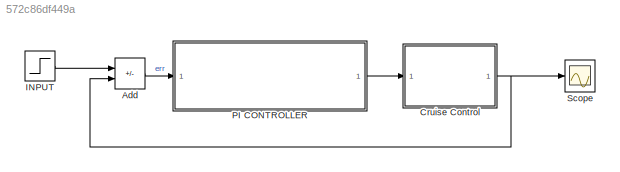
MODEL slx_572c86df449a
KIND model
CONFIG AbsTol = auto
CONFIG EnableMultiTasking = off
CONFIG FixedStep = auto
CONFIG MaxStep = auto
CONFIG MinStep = auto
CONFIG PreLoadFcn = vars
CONFIG RelTol = 1e-3
CONFIG SampleTimeConstraint = Unconstrained
CONFIG SolverName = VariableStepAuto
CONFIG StartTime = 0.0
CONFIG StopTime = 120
WORKSPACE source: external: MATLAB File  (data not in archive)
BLOCK [Sum] Add
  IconShape = rectangular
  Inputs = +-
  Ports = [2, 1]
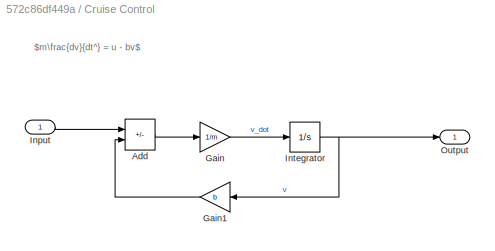
BLOCK [SubSystem] Cruise Control
  Ports = [1, 1]
  RequestExecContextInheritance = off
BLOCK [Sum] Cruise Control/Add
  IconShape = rectangular
  Inputs = +-
  Ports = [2, 1]
BLOCK [Gain] Cruise Control/Gain
  Gain = 1/m
BLOCK [Gain] Cruise Control/Gain1
  Gain = b
BLOCK [Inport] Cruise Control/Input
BLOCK [Integrator] Cruise Control/Integrator
  Ports = [1, 1]
BLOCK [Outport] Cruise Control/Output
BLOCK [Step] INPUT
  After = u
  SampleTime = 0
  Time = 0
BLOCK [ModelReference] PI CONTROLLER
  Ki = 0.185
  Kp = 2.28
  ModelNameDialog = PI_CONTROLLER_Model_Ref
  ModelReferenceVersion = 1.20
  Ports = [1, 1]
  UsingDefaultArgumentValue = 0,0
BLOCK [Scope] Scope
  Floating = off
  NumInputPorts = 1
  Ports = [1]
  ScopeSpecificationString = Simulink.scopes.TimeScopeBlockCfg('CurrentConfiguration', extmgr.ConfigurationSet(extmgr.Configuration('Core','General UI',true),extmgr.Configuration('Core','Source UI',true),extmgr.Configuration('Sources','WiredSimulink',true),extmgr.Configuration('Visuals','Time Domain',true,'SerializedDisplays',{struct('MinYLimReal','-2.72507','MaxYLimReal','24.5256','YLabelReal','','MinYLimMag','0.00000','MaxY...<+1362ch>
ANNOTATION Cruise Control: $m\frac{dv}{dt^} = u - bv$
LINE Add:1 -> PI CONTROLLER:1
LINE Cruise Control/Add:1 -> Cruise Control/Gain:1
LINE Cruise Control/Gain1:1 -> Cruise Control/Add:2
LINE Cruise Control/Gain:1 -> Cruise Control/Integrator:1
LINE Cruise Control/Input:1 -> Cruise Control/Add:1
NET Cruise Control/Integrator:1 -> Cruise Control/Gain1:1, Cruise Control/Output:1
NET Cruise Control:1 -> Add:2, Scope:1
LINE INPUT:1 -> Add:1
LINE PI CONTROLLER:1 -> Cruise Control:1
note: NET lines group one-source signal fan-out (src -> all destinations, sorted); 1:1 wires keep LINE
